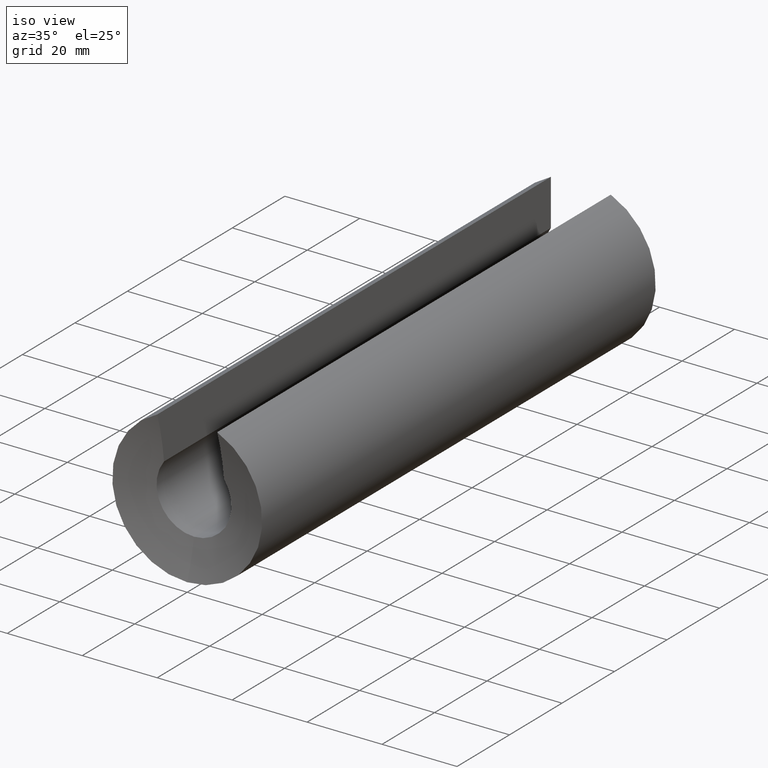
[diagram: clean part render]
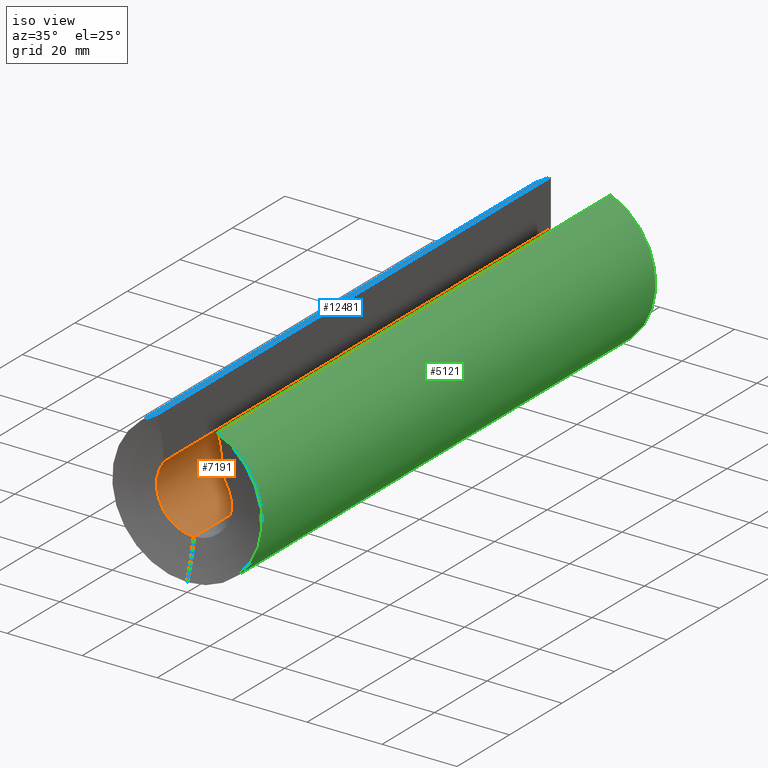
[diagram: same view with three faces highlighted in distinct colors, each labeled with its STEP entity id]
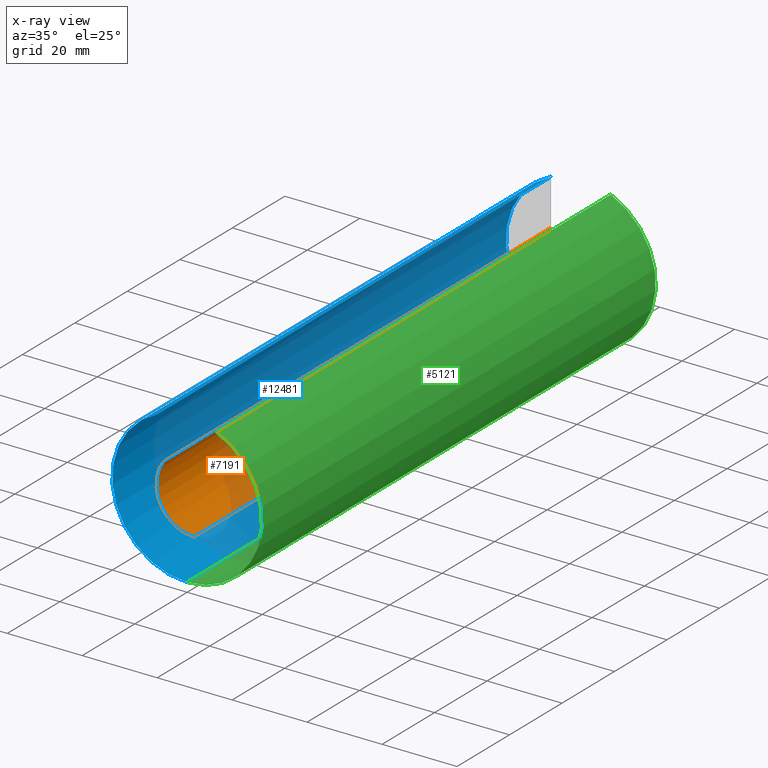
[diagram: x-ray of the same camera — body ghosted, the three highlighted faces saturated]
A machine part, iso view with three faces highlighted in distinct colors.
The next image is the same camera in x-ray (body ghosted, the three faces saturated) — at least one of them is partly hidden behind the body in this view.
Their STEP definitions:

[orange] entity #7191 — the highlighted cylindrical surface (partial cylindrical patch) has radius 10 mm, axis along (-0, -1, -0).
#171 = DIRECTION ( 'NONE',  ( -0.0000000000000000000, -1.000000000000000000, -0.0000000000000000000 ) ) ;
#177 = VERTEX_POINT ( 'NONE', #7245 ) ;
#201 = EDGE_CURVE ( 'NONE', #177, #7244, #3397, .T. ) ;
#337 = VERTEX_POINT ( 'NONE', #9958 ) ;
#1872 = AXIS2_PLACEMENT_3D ( 'NONE', #9560, #12678, #8617 ) ;
#2026 = AXIS2_PLACEMENT_3D ( 'NONE', #3536, #5460, #3407 ) ;
#2525 = DIRECTION ( 'NONE',  ( 0.0000000000000000000, 0.0000000000000000000, -1.000000000000000000 ) ) ;
#3397 = CIRCLE ( 'NONE', #1872, 10.00000000000000000 ) ;
#3407 = DIRECTION ( 'NONE',  ( 0.0000000000000000000, 0.0000000000000000000, 1.000000000000000000 ) ) ;
#3536 = CARTESIAN_POINT ( 'NONE',  ( 0.0000000000000000000, 150.0000000000000000, 0.0000000000000000000 ) ) ;
#3566 = CARTESIAN_POINT ( 'NONE',  ( 0.0000000000000000000, 150.0000000000000000, 0.0000000000000000000 ) ) ;
#3915 = EDGE_CURVE ( 'NONE', #337, #177, #4515, .T. ) ;
#4124 = CARTESIAN_POINT ( 'NONE',  ( 0.0000000000000000000, 150.0000000000000000, -10.00000000000000000 ) ) ;
#4275 = CARTESIAN_POINT ( 'NONE',  ( 0.0000000000000000000, 2.592255336072366100, -10.00000000000000000 ) ) ;
#4515 = LINE ( 'NONE', #9680, #10778 ) ;
#4691 = ORIENTED_EDGE ( 'NONE', *, *, #5339, .F. ) ;
#4820 = EDGE_CURVE ( 'NONE', #5672, #7244, #10769, .T. ) ;
#5339 = EDGE_CURVE ( 'NONE', #337, #5672, #5463, .T. ) ;
#5460 = DIRECTION ( 'NONE',  ( -0.0000000000000000000, -1.000000000000000000, -0.0000000000000000000 ) ) ;
#5463 = CIRCLE ( 'NONE', #2026, 10.00000000000000000 ) ;
#5654 = EDGE_LOOP ( 'NONE', ( #12447, #4691, #5981, #6293 ) ) ;
#5672 = VERTEX_POINT ( 'NONE', #4124 ) ;
#5981 = ORIENTED_EDGE ( 'NONE', *, *, #3915, .T. ) ;
#6293 = ORIENTED_EDGE ( 'NONE', *, *, #201, .T. ) ;
#6343 = AXIS2_PLACEMENT_3D ( 'NONE', #3566, #7760, #2525 ) ;
#6382 = FACE_OUTER_BOUND ( 'NONE', #5654, .T. ) ;
#6874 = CYLINDRICAL_SURFACE ( 'NONE', #6343, 10.00000000000000000 ) ;
#7191 = ADVANCED_FACE ( 'NONE', ( #6382 ), #6874, .F. ) ;
#7244 = VERTEX_POINT ( 'NONE', #4275 ) ;
#7245 = CARTESIAN_POINT ( 'NONE',  ( -8.000000000000001800, 2.592255336072366100, 5.999999999999997300 ) ) ;
#7760 = DIRECTION ( 'NONE',  ( -0.0000000000000000000, -1.000000000000000000, -0.0000000000000000000 ) ) ;
#8617 = DIRECTION ( 'NONE',  ( 0.0000000000000000000, 0.0000000000000000000, -1.000000000000000000 ) ) ;
#8647 = DIRECTION ( 'NONE',  ( -0.0000000000000000000, -1.000000000000000000, -0.0000000000000000000 ) ) ;
#9560 = CARTESIAN_POINT ( 'NONE',  ( 0.0000000000000000000, 2.592255336072366100, 0.0000000000000000000 ) ) ;
#9680 = CARTESIAN_POINT ( 'NONE',  ( -8.000000000000001800, 150.0000000000000000, 5.999999999999997300 ) ) ;
#9958 = CARTESIAN_POINT ( 'NONE',  ( -8.000000000000001800, 150.0000000000000000, 5.999999999999997300 ) ) ;
#10769 = LINE ( 'NONE', #11644, #12880 ) ;
#10778 = VECTOR ( 'NONE', #8647, 1000.000000000000000 ) ;
#11644 = CARTESIAN_POINT ( 'NONE',  ( 0.0000000000000000000, 150.0000000000000000, -10.00000000000000000 ) ) ;
#12447 = ORIENTED_EDGE ( 'NONE', *, *, #4820, .F. ) ;
#12678 = DIRECTION ( 'NONE',  ( -0.0000000000000000000, -1.000000000000000000, -0.0000000000000000000 ) ) ;
#12880 = VECTOR ( 'NONE', #171, 1000.000000000000000 ) ;

[blue] entity #12481 — the highlighted cylindrical surface (partial cylindrical patch) has radius 20 mm, axis along (-0, -1, -0).
#15 = CYLINDRICAL_SURFACE ( 'NONE', #6988, 19.99999999999999300 ) ;
#48 = DIRECTION ( 'NONE',  ( 0.0000000000000000000, 0.0000000000000000000, 1.000000000000000000 ) ) ;
#807 = FACE_OUTER_BOUND ( 'NONE', #10224, .T. ) ;
#968 = CIRCLE ( 'NONE', #3757, 19.99999999999999300 ) ;
#1134 = CARTESIAN_POINT ( 'NONE',  ( 0.0000000000000000000, 150.0000000000000000, 0.0000000000000000000 ) ) ;
#1322 = VERTEX_POINT ( 'NONE', #5779 ) ;
#1451 = VERTEX_POINT ( 'NONE', #13178 ) ;
#1514 = EDGE_CURVE ( 'NONE', #1322, #1451, #10815, .T. ) ;
#2018 = EDGE_CURVE ( 'NONE', #2871, #1322, #968, .T. ) ;
#2027 = VECTOR ( 'NONE', #11137, 1000.000000000000000 ) ;
#2479 = CARTESIAN_POINT ( 'NONE',  ( 0.0000000000000000000, 150.0000000000000000, -19.99999999999999300 ) ) ;
#2662 = LINE ( 'NONE', #10016, #2027 ) ;
#2871 = VERTEX_POINT ( 'NONE', #2479 ) ;
#3072 = DIRECTION ( 'NONE',  ( 0.0000000000000000000, 0.0000000000000000000, 1.000000000000000000 ) ) ;
#3757 = AXIS2_PLACEMENT_3D ( 'NONE', #1134, #12498, #3072 ) ;
#4345 = CIRCLE ( 'NONE', #11999, 19.99999999999999300 ) ;
#5170 = ORIENTED_EDGE ( 'NONE', *, *, #1514, .F. ) ;
#5779 = CARTESIAN_POINT ( 'NONE',  ( -8.000000000000000000, 150.0000000000000000, 18.33030277982335600 ) ) ;
#5907 = ORIENTED_EDGE ( 'NONE', *, *, #2018, .F. ) ;
#6202 = DIRECTION ( 'NONE',  ( 0.0000000000000000000, 1.000000000000000000, 0.0000000000000000000 ) ) ;
#6988 = AXIS2_PLACEMENT_3D ( 'NONE', #8127, #12309, #8208 ) ;
#7004 = ORIENTED_EDGE ( 'NONE', *, *, #9671, .T. ) ;
#8127 = CARTESIAN_POINT ( 'NONE',  ( 0.0000000000000000000, 150.0000000000000000, 0.0000000000000000000 ) ) ;
#8208 = DIRECTION ( 'NONE',  ( 0.0000000000000000000, 0.0000000000000000000, -1.000000000000000000 ) ) ;
#9254 = CARTESIAN_POINT ( 'NONE',  ( 0.0000000000000000000, 0.0000000000000000000, 0.0000000000000000000 ) ) ;
#9671 = EDGE_CURVE ( 'NONE', #2871, #10625, #2662, .T. ) ;
#10016 = CARTESIAN_POINT ( 'NONE',  ( 0.0000000000000000000, 150.0000000000000000, -19.99999999999999300 ) ) ;
#10058 = CARTESIAN_POINT ( 'NONE',  ( -8.000000000000000000, 150.0000000000000000, 18.33030277982335600 ) ) ;
#10224 = EDGE_LOOP ( 'NONE', ( #5907, #7004, #11024, #5170 ) ) ;
#10625 = VERTEX_POINT ( 'NONE', #11634 ) ;
#10815 = LINE ( 'NONE', #10058, #11292 ) ;
#11024 = ORIENTED_EDGE ( 'NONE', *, *, #13377, .T. ) ;
#11137 = DIRECTION ( 'NONE',  ( -0.0000000000000000000, -1.000000000000000000, -0.0000000000000000000 ) ) ;
#11292 = VECTOR ( 'NONE', #12118, 1000.000000000000000 ) ;
#11634 = CARTESIAN_POINT ( 'NONE',  ( 0.0000000000000000000, 0.0000000000000000000, -19.99999999999999300 ) ) ;
#11999 = AXIS2_PLACEMENT_3D ( 'NONE', #9254, #6202, #48 ) ;
#12118 = DIRECTION ( 'NONE',  ( -0.0000000000000000000, -1.000000000000000000, -0.0000000000000000000 ) ) ;
#12309 = DIRECTION ( 'NONE',  ( -0.0000000000000000000, -1.000000000000000000, -0.0000000000000000000 ) ) ;
#12481 = ADVANCED_FACE ( 'NONE', ( #807 ), #15, .T. ) ;
#12498 = DIRECTION ( 'NONE',  ( 0.0000000000000000000, 1.000000000000000000, 0.0000000000000000000 ) ) ;
#13178 = CARTESIAN_POINT ( 'NONE',  ( -8.000000000000000000, 0.0000000000000000000, 18.33030277982335600 ) ) ;
#13377 = EDGE_CURVE ( 'NONE', #10625, #1451, #4345, .T. ) ;

[green] entity #5121 — the highlighted cylindrical surface (partial cylindrical patch) has radius 20 mm, axis along (-0, -1, -0).
#327 = DIRECTION ( 'NONE',  ( -0.0000000000000000000, -1.000000000000000000, -0.0000000000000000000 ) ) ;
#992 = ORIENTED_EDGE ( 'NONE', *, *, #13285, .T. ) ;
#1501 = DIRECTION ( 'NONE',  ( 0.0000000000000000000, 1.000000000000000000, 0.0000000000000000000 ) ) ;
#1877 = CARTESIAN_POINT ( 'NONE',  ( 0.0000000000000000000, 0.0000000000000000000, 0.0000000000000000000 ) ) ;
#2027 = VECTOR ( 'NONE', #11137, 1000.000000000000000 ) ;
#2370 = CYLINDRICAL_SURFACE ( 'NONE', #4894, 19.99999999999999300 ) ;
#2479 = CARTESIAN_POINT ( 'NONE',  ( 0.0000000000000000000, 150.0000000000000000, -19.99999999999999300 ) ) ;
#2662 = LINE ( 'NONE', #10016, #2027 ) ;
#2768 = EDGE_LOOP ( 'NONE', ( #10200, #13142, #11306, #992 ) ) ;
#2871 = VERTEX_POINT ( 'NONE', #2479 ) ;
#3303 = CIRCLE ( 'NONE', #10748, 19.99999999999999300 ) ;
#3811 = DIRECTION ( 'NONE',  ( 0.0000000000000000000, 1.000000000000000000, 0.0000000000000000000 ) ) ;
#4717 = CARTESIAN_POINT ( 'NONE',  ( 0.0000000000000000000, 150.0000000000000000, 0.0000000000000000000 ) ) ;
#4894 = AXIS2_PLACEMENT_3D ( 'NONE', #7518, #8431, #9605 ) ;
#5121 = ADVANCED_FACE ( 'NONE', ( #8986 ), #2370, .T. ) ;
#5619 = AXIS2_PLACEMENT_3D ( 'NONE', #1877, #3811, #11027 ) ;
#5643 = CARTESIAN_POINT ( 'NONE',  ( 8.000000000000000000, 150.0000000000000000, 18.33030277982335600 ) ) ;
#6814 = DIRECTION ( 'NONE',  ( 0.0000000000000000000, 0.0000000000000000000, 1.000000000000000000 ) ) ;
#7163 = EDGE_CURVE ( 'NONE', #8423, #2871, #3303, .T. ) ;
#7518 = CARTESIAN_POINT ( 'NONE',  ( 0.0000000000000000000, 150.0000000000000000, 0.0000000000000000000 ) ) ;
#7615 = EDGE_CURVE ( 'NONE', #8423, #11042, #10096, .T. ) ;
#8423 = VERTEX_POINT ( 'NONE', #5643 ) ;
#8431 = DIRECTION ( 'NONE',  ( -0.0000000000000000000, -1.000000000000000000, -0.0000000000000000000 ) ) ;
#8986 = FACE_OUTER_BOUND ( 'NONE', #2768, .T. ) ;
#9605 = DIRECTION ( 'NONE',  ( 0.0000000000000000000, 0.0000000000000000000, -1.000000000000000000 ) ) ;
#9671 = EDGE_CURVE ( 'NONE', #2871, #10625, #2662, .T. ) ;
#9820 = CIRCLE ( 'NONE', #5619, 19.99999999999999300 ) ;
#10016 = CARTESIAN_POINT ( 'NONE',  ( 0.0000000000000000000, 150.0000000000000000, -19.99999999999999300 ) ) ;
#10096 = LINE ( 'NONE', #10539, #12347 ) ;
#10200 = ORIENTED_EDGE ( 'NONE', *, *, #9671, .F. ) ;
#10539 = CARTESIAN_POINT ( 'NONE',  ( 8.000000000000000000, 150.0000000000000000, 18.33030277982335600 ) ) ;
#10625 = VERTEX_POINT ( 'NONE', #11634 ) ;
#10748 = AXIS2_PLACEMENT_3D ( 'NONE', #4717, #1501, #6814 ) ;
#11027 = DIRECTION ( 'NONE',  ( 0.0000000000000000000, 0.0000000000000000000, 1.000000000000000000 ) ) ;
#11042 = VERTEX_POINT ( 'NONE', #12325 ) ;
#11137 = DIRECTION ( 'NONE',  ( -0.0000000000000000000, -1.000000000000000000, -0.0000000000000000000 ) ) ;
#11306 = ORIENTED_EDGE ( 'NONE', *, *, #7615, .T. ) ;
#11634 = CARTESIAN_POINT ( 'NONE',  ( 0.0000000000000000000, 0.0000000000000000000, -19.99999999999999300 ) ) ;
#12325 = CARTESIAN_POINT ( 'NONE',  ( 7.999999999999998200, 0.0000000000000000000, 18.33030277982335200 ) ) ;
#12347 = VECTOR ( 'NONE', #327, 1000.000000000000000 ) ;
#13142 = ORIENTED_EDGE ( 'NONE', *, *, #7163, .F. ) ;
#13285 = EDGE_CURVE ( 'NONE', #11042, #10625, #9820, .T. ) ;